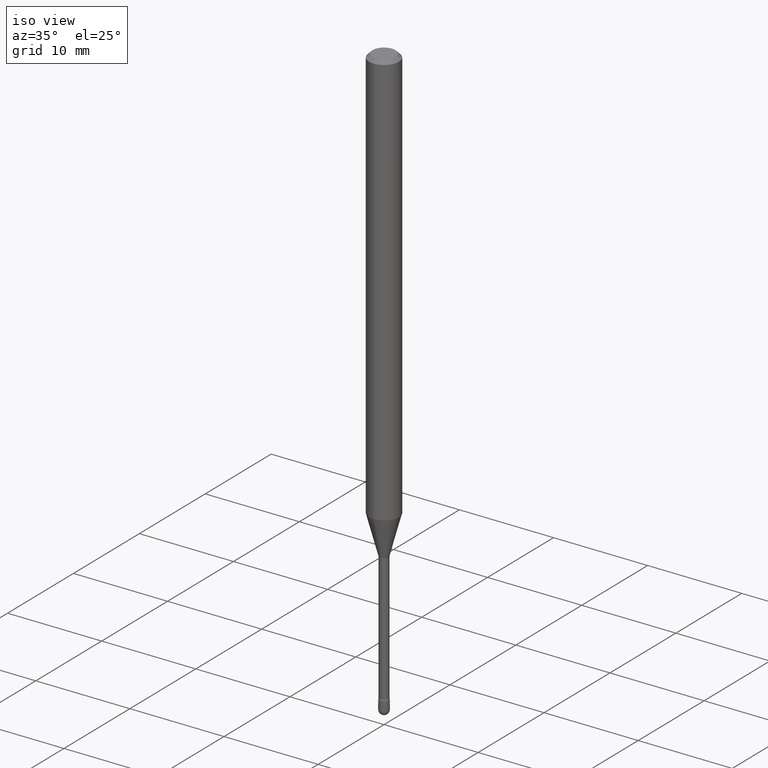
[diagram: clean part render]
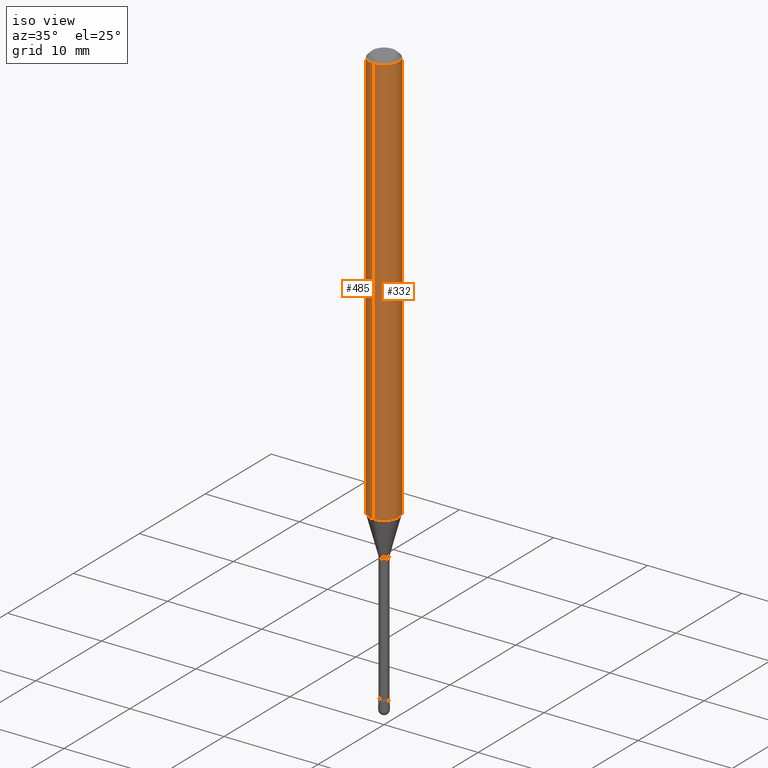
[diagram: same view with one multi-face feature highlighted, each face labeled with its STEP entity id]
A machine part, iso view. The highlighted faces form ONE feature: a constant-radius fillet chain: 2 tangent blend faces with common blend radius 1.5875 mm. The faces share edges in the B-rep.
Their STEP definitions:
[1] entity #485 (Cylinder):
#8 = VECTOR ( 'NONE', #540, 39.37007874015748143 ) ;
#17 = DIRECTION ( 'NONE',  ( -6.982962677686265922E-15, -1.000000000000000000, 3.491553449391569212E-15 ) ) ;
#20 = CARTESIAN_POINT ( 'NONE',  ( -4.364351673553916201E-16, -0.06250000000000000000, 6.962954894782191143E-16 ) ) ;
#28 = AXIS2_PLACEMENT_3D ( 'NONE', #326, #464, #543 ) ;
#73 = CARTESIAN_POINT ( 'NONE',  ( -4.364351673553493174E-16, -0.06250000000000607847, -1.736909379709240309 ) ) ;
#83 = CARTESIAN_POINT ( 'NONE',  ( 3.668127677487478919E-31, -5.237330174087381797E-17, -0.01500000000000008271 ) ) ;
#93 = DIRECTION ( 'NONE',  ( -6.982962677686265922E-15, -1.000000000000000000, 3.483106191921935554E-15 ) ) ;
#109 = EDGE_CURVE ( 'NONE', #274, #384, #116, .T. ) ;
#116 = CIRCLE ( 'NONE', #255, 0.06250000000000000000 ) ;
#149 = AXIS2_PLACEMENT_3D ( 'NONE', #244, #410, #17 ) ;
#158 = CARTESIAN_POINT ( 'NONE',  ( -4.364351673553912750E-16, -0.06250000000000005551, -0.01499999999999986587 ) ) ;
#166 = LINE ( 'NONE', #334, #237 ) ;
#188 = ORIENTED_EDGE ( 'NONE', *, *, #493, .T. ) ;
#202 = CARTESIAN_POINT ( 'NONE',  ( 4.440892098501048202E-16, 0.06249999999999392153, -1.736909379709240753 ) ) ;
#237 = VECTOR ( 'NONE', #333, 39.37007874015748143 ) ;
#244 = CARTESIAN_POINT ( 'NONE',  ( -1.169113584055446105E-44, 1.669184350826100908E-30, 4.780733988912460139E-16 ) ) ;
#254 = EDGE_LOOP ( 'NONE', ( #503, #353, #188, #549 ) ) ;
#255 = AXIS2_PLACEMENT_3D ( 'NONE', #83, #309, #93 ) ;
#274 = VERTEX_POINT ( 'NONE', #441 ) ;
#309 = DIRECTION ( 'NONE',  ( -2.445418451658306189E-29, 3.491553449391568423E-15, 1.000000000000000000 ) ) ;
#326 = CARTESIAN_POINT ( 'NONE',  ( 4.247470245999360012E-29, -6.064511936004368294E-15, -1.736909379709240531 ) ) ;
#333 = DIRECTION ( 'NONE',  ( -2.445418451658306189E-29, 3.491553449391568423E-15, 1.000000000000000000 ) ) ;
#334 = CARTESIAN_POINT ( 'NONE',  ( 4.440892098500625669E-16, 0.06250000000000000000, 2.598513083042730615E-16 ) ) ;
#353 = ORIENTED_EDGE ( 'NONE', *, *, #414, .T. ) ;
#372 = LINE ( 'NONE', #20, #8 ) ;
#384 = VERTEX_POINT ( 'NONE', #158 ) ;
#410 = DIRECTION ( 'NONE',  ( -2.445418451658306189E-29, 3.491553449391568423E-15, 1.000000000000000000 ) ) ;
#414 = EDGE_CURVE ( 'NONE', #466, #469, #522, .T. ) ;
#441 = CARTESIAN_POINT ( 'NONE',  ( 4.440892098501054119E-16, 0.06249999999999995837, -0.01500000000000030129 ) ) ;
#460 = CYLINDRICAL_SURFACE ( 'NONE', #149, 0.06250000000000000000 ) ;
#464 = DIRECTION ( 'NONE',  ( -2.445418451658306189E-29, 3.491553449391568423E-15, 1.000000000000000000 ) ) ;
#466 = VERTEX_POINT ( 'NONE', #202 ) ;
#469 = VERTEX_POINT ( 'NONE', #73 ) ;
#485 = ADVANCED_FACE ( 'NONE', ( #500 ), #460, .T. ) ;
#493 = EDGE_CURVE ( 'NONE', #469, #384, #372, .T. ) ;
#500 = FACE_OUTER_BOUND ( 'NONE', #254, .T. ) ;
#503 = ORIENTED_EDGE ( 'NONE', *, *, #554, .F. ) ;
#522 = CIRCLE ( 'NONE', #28, 0.06250000000000000000 ) ;
#540 = DIRECTION ( 'NONE',  ( -2.445418451658306189E-29, 3.491553449391568423E-15, 1.000000000000000000 ) ) ;
#543 = DIRECTION ( 'NONE',  ( -6.982962677686265922E-15, -1.000000000000000000, 4.370956789862821150E-15 ) ) ;
#549 = ORIENTED_EDGE ( 'NONE', *, *, #109, .F. ) ;
#554 = EDGE_CURVE ( 'NONE', #466, #274, #166, .T. ) ;
[2] entity #332 (Cylinder):
#8 = VECTOR ( 'NONE', #540, 39.37007874015748143 ) ;
#15 = AXIS2_PLACEMENT_3D ( 'NONE', #258, #342, #35 ) ;
#20 = CARTESIAN_POINT ( 'NONE',  ( -4.364351673553916201E-16, -0.06250000000000000000, 6.962954894782191143E-16 ) ) ;
#35 = DIRECTION ( 'NONE',  ( -6.982962677686265922E-15, -1.000000000000000000, 3.483106191921935554E-15 ) ) ;
#40 = EDGE_LOOP ( 'NONE', ( #194, #74, #559, #187 ) ) ;
#44 = CARTESIAN_POINT ( 'NONE',  ( 4.247470245999360012E-29, -6.064511936004368294E-15, -1.736909379709240531 ) ) ;
#45 = CIRCLE ( 'NONE', #15, 0.06250000000000000000 ) ;
#73 = CARTESIAN_POINT ( 'NONE',  ( -4.364351673553493174E-16, -0.06250000000000607847, -1.736909379709240309 ) ) ;
#74 = ORIENTED_EDGE ( 'NONE', *, *, #554, .T. ) ;
#90 = AXIS2_PLACEMENT_3D ( 'NONE', #536, #156, #106 ) ;
#106 = DIRECTION ( 'NONE',  ( -6.982962677686265922E-15, -1.000000000000000000, 3.491553449391569212E-15 ) ) ;
#136 = EDGE_CURVE ( 'NONE', #469, #466, #396, .T. ) ;
#156 = DIRECTION ( 'NONE',  ( -2.445418451658306189E-29, 3.491553449391568423E-15, 1.000000000000000000 ) ) ;
#157 = EDGE_CURVE ( 'NONE', #384, #274, #45, .T. ) ;
#158 = CARTESIAN_POINT ( 'NONE',  ( -4.364351673553912750E-16, -0.06250000000000005551, -0.01499999999999986587 ) ) ;
#166 = LINE ( 'NONE', #334, #237 ) ;
#187 = ORIENTED_EDGE ( 'NONE', *, *, #493, .F. ) ;
#194 = ORIENTED_EDGE ( 'NONE', *, *, #136, .T. ) ;
#202 = CARTESIAN_POINT ( 'NONE',  ( 4.440892098501048202E-16, 0.06249999999999392153, -1.736909379709240753 ) ) ;
#226 = DIRECTION ( 'NONE',  ( -6.982962677686265922E-15, -1.000000000000000000, 4.370956789862821150E-15 ) ) ;
#237 = VECTOR ( 'NONE', #333, 39.37007874015748143 ) ;
#258 = CARTESIAN_POINT ( 'NONE',  ( 3.668127677487478919E-31, -5.237330174087381797E-17, -0.01500000000000008271 ) ) ;
#274 = VERTEX_POINT ( 'NONE', #441 ) ;
#312 = CYLINDRICAL_SURFACE ( 'NONE', #90, 0.06250000000000000000 ) ;
#332 = ADVANCED_FACE ( 'NONE', ( #403 ), #312, .T. ) ;
#333 = DIRECTION ( 'NONE',  ( -2.445418451658306189E-29, 3.491553449391568423E-15, 1.000000000000000000 ) ) ;
#334 = CARTESIAN_POINT ( 'NONE',  ( 4.440892098500625669E-16, 0.06250000000000000000, 2.598513083042730615E-16 ) ) ;
#342 = DIRECTION ( 'NONE',  ( -2.445418451658306189E-29, 3.491553449391568423E-15, 1.000000000000000000 ) ) ;
#372 = LINE ( 'NONE', #20, #8 ) ;
#384 = VERTEX_POINT ( 'NONE', #158 ) ;
#396 = CIRCLE ( 'NONE', #467, 0.06250000000000000000 ) ;
#403 = FACE_OUTER_BOUND ( 'NONE', #40, .T. ) ;
#431 = DIRECTION ( 'NONE',  ( -2.445418451658306189E-29, 3.491553449391568423E-15, 1.000000000000000000 ) ) ;
#441 = CARTESIAN_POINT ( 'NONE',  ( 4.440892098501054119E-16, 0.06249999999999995837, -0.01500000000000030129 ) ) ;
#466 = VERTEX_POINT ( 'NONE', #202 ) ;
#467 = AXIS2_PLACEMENT_3D ( 'NONE', #44, #431, #226 ) ;
#469 = VERTEX_POINT ( 'NONE', #73 ) ;
#493 = EDGE_CURVE ( 'NONE', #469, #384, #372, .T. ) ;
#536 = CARTESIAN_POINT ( 'NONE',  ( -1.169113584055446105E-44, 1.669184350826100908E-30, 4.780733988912460139E-16 ) ) ;
#540 = DIRECTION ( 'NONE',  ( -2.445418451658306189E-29, 3.491553449391568423E-15, 1.000000000000000000 ) ) ;
#554 = EDGE_CURVE ( 'NONE', #466, #274, #166, .T. ) ;
#559 = ORIENTED_EDGE ( 'NONE', *, *, #157, .F. ) ;